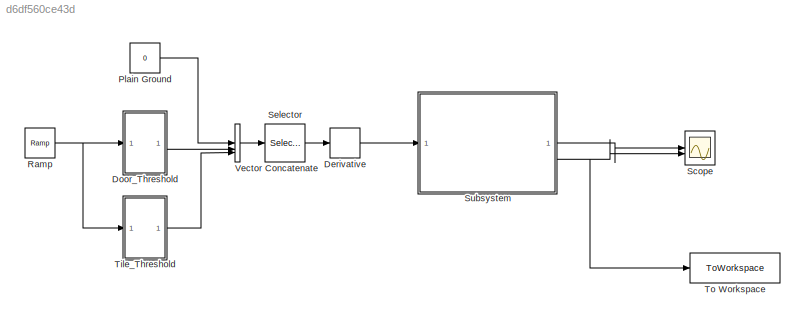
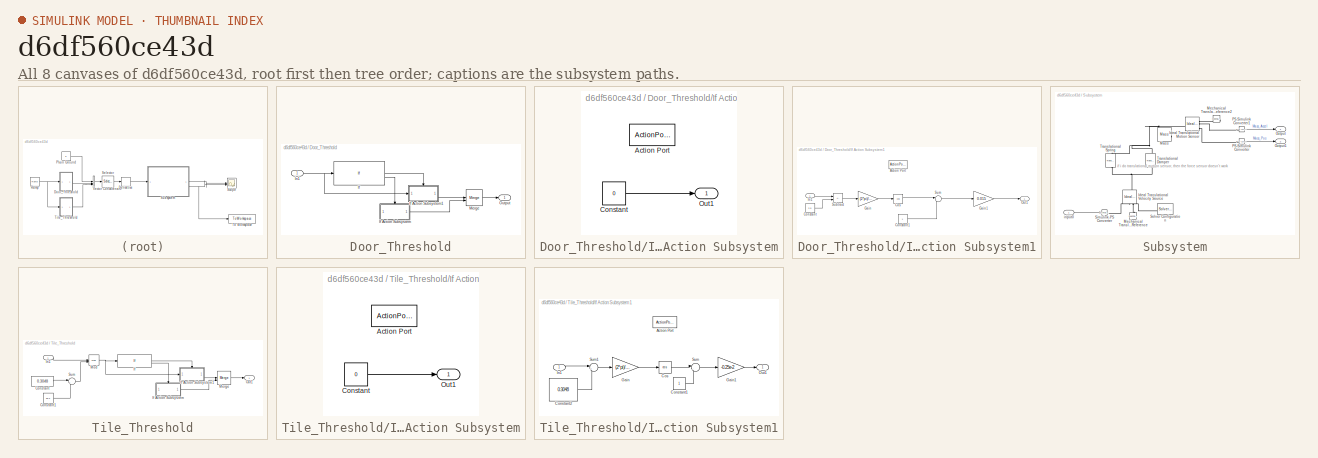
[diagram: thumbnail index - all 8 canvases of the model, root first then tree order]
MODEL slx_d6df560ce43d
KIND model
CONFIG AbsTol = 1e-3
CONFIG EnableMultiTasking = off
CONFIG FixedStep = auto
CONFIG MaxStep = auto
CONFIG MinStep = auto
CONFIG RelTol = 1e-3
CONFIG SampleTimeConstraint = Unconstrained
CONFIG SolverName = VariableStepAuto
CONFIG StartTime = 0.0
CONFIG StopTime = 15
BLOCK [Derivative] Derivative
BLOCK [SubSystem] Door_Threshold
BLOCK [If] Door_Threshold/If
  IfExpression = (u1 >= 2.5) & (u1 <= 2.55)
BLOCK [SubSystem] Door_Threshold/If Action Subsystem
  TreatAsAtomicUnit = on
BLOCK [ActionPort] Door_Threshold/If Action Subsystem/Action Port
  ActionPortLabel = else
BLOCK [Constant] Door_Threshold/If Action Subsystem/Constant
  Value = 0
BLOCK [Outport] Door_Threshold/If Action Subsystem/Out1
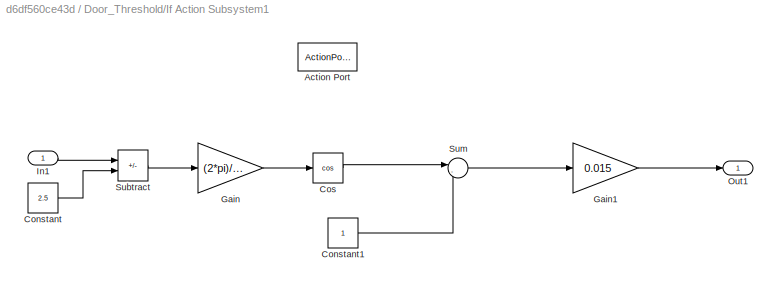
BLOCK [SubSystem] Door_Threshold/If Action Subsystem1
  TreatAsAtomicUnit = on
BLOCK [ActionPort] Door_Threshold/If Action Subsystem1/Action Port
  ActionPortLabel = if((u1 >= 2.5) & (u1 <= 2.55))
BLOCK [Constant] Door_Threshold/If Action Subsystem1/Constant
  Value = 2.5
BLOCK [Constant] Door_Threshold/If Action Subsystem1/Constant1
BLOCK [Trigonometry] Door_Threshold/If Action Subsystem1/Cos
  Operator = cos
BLOCK [Gain] Door_Threshold/If Action Subsystem1/Gain
  Gain = (2*pi)/0.05
BLOCK [Gain] Door_Threshold/If Action Subsystem1/Gain1
  Gain = 0.015
BLOCK [Inport] Door_Threshold/If Action Subsystem1/In1
BLOCK [Outport] Door_Threshold/If Action Subsystem1/Out1
BLOCK [Sum] Door_Threshold/If Action Subsystem1/Subtract
  IconShape = rectangular
  Inputs = +-
BLOCK [Sum] Door_Threshold/If Action Subsystem1/Sum
  Inputs = |-+
BLOCK [Inport] Door_Threshold/In1
BLOCK [Merge] Door_Threshold/Merge
BLOCK [Outport] Door_Threshold/Output
BLOCK [Constant] Plain Ground
  Value = 0
BLOCK [Reference] Ramp  REF=simulink/Sources/Ramp
  SourceBlock = simulink/Sources/Ramp
  SourceType = Ramp
BLOCK [Scope] Scope
  Floating = off
  NumInputPorts = 3
  ScopeSpecificationString = Simulink.scopes.TimeScopeBlockCfg('CurrentConfiguration', extmgr.ConfigurationSet(extmgr.Configuration('Core','General UI',true),extmgr.Configuration('Core','Source UI',true),extmgr.Configuration('Sources','WiredSimulink',true),extmgr.Configuration('Visuals','Time Domain',true,'SerializedDisplays',{struct('MinYLimReal','-0.02488','MaxYLimReal','0.04952','YLabelReal','','MinYLimMag','0.00000','MaxY...<+1457ch>
BLOCK [Selector] Selector
  IndexOptions = Index vector (dialog)
  Indices = [2]
  InputPortWidth = 3
  OutputSizes = 1
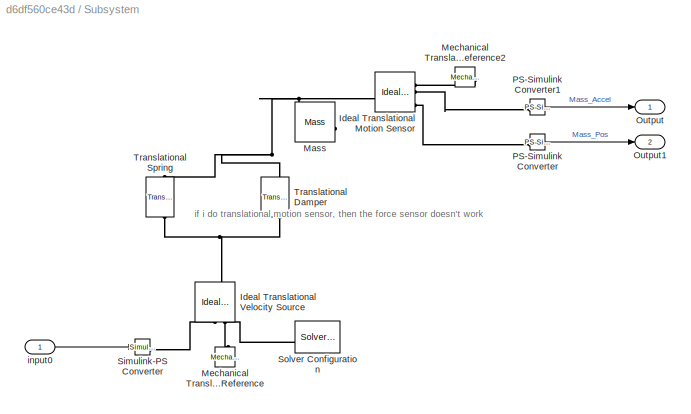
BLOCK [SubSystem] Subsystem
BLOCK [Reference] Subsystem/Ideal Translational Motion Sensor  REF=fl_lib/Mechanical/Mechanical Sensors/Ideal Translational
Motion Sensor
  SourceBlock = fl_lib/Mechanical/Mechanical Sensors/Ideal Translational\nMotion Sensor
  SourceType = Ideal Translational\nMotion Sensor
BLOCK [Reference] Subsystem/Ideal Translational Velocity Source  REF=fl_lib/Mechanical/Mechanical Sources/Ideal Translational
Velocity Source
  NameLocation = right
  SourceBlock = fl_lib/Mechanical/Mechanical Sources/Ideal Translational\nVelocity Source
  SourceType = Ideal Translational\nVelocity Source
BLOCK [Reference] Subsystem/Mass  REF=fl_lib/Mechanical/Translational
Elements/Mass
  NameLocation = top
  SourceBlock = fl_lib/Mechanical/Translational\nElements/Mass
  SourceType = Mass
BLOCK [Reference] Subsystem/Mechanical Translational Reference  REF=fl_lib/Mechanical/Translational
Elements/Mechanical
Translational
Reference
  SourceBlock = fl_lib/Mechanical/Translational\nElements/Mechanical\nTranslational\nReference
  SourceType = Mechanical\nTranslational\nReference
BLOCK [Reference] Subsystem/Mechanical Translational Reference2  REF=fl_lib/Mechanical/Translational
Elements/Mechanical
Translational
Reference
  NameLocation = top
  SourceBlock = fl_lib/Mechanical/Translational\nElements/Mechanical\nTranslational\nReference
  SourceType = Mechanical\nTranslational\nReference
BLOCK [Outport] Subsystem/Output
BLOCK [Outport] Subsystem/Output1
  Port = 2
BLOCK [Reference] Subsystem/PS-Simulink Converter  REF=nesl_utility/PS-Simulink
Converter
  SourceBlock = nesl_utility/PS-Simulink\nConverter
  SourceType = PS-Simulink\nConverter
BLOCK [Reference] Subsystem/PS-Simulink Converter1  REF=nesl_utility/PS-Simulink
Converter
  SourceBlock = nesl_utility/PS-Simulink\nConverter
  SourceType = PS-Simulink\nConverter
BLOCK [Reference] Subsystem/Simulink-PS Converter  REF=nesl_utility/Simulink-PS
Converter
  SourceBlock = nesl_utility/Simulink-PS\nConverter
  SourceType = Simulink-PS\nConverter
BLOCK [Reference] Subsystem/Solver Configuration  REF=nesl_utility/Solver
Configuration
  SourceBlock = nesl_utility/Solver\nConfiguration
  SourceType = Solver\nConfiguration
BLOCK [Reference] Subsystem/Translational Damper  REF=fl_lib/Mechanical/Translational
Elements/Translational Damper
  NameLocation = left
  SourceBlock = fl_lib/Mechanical/Translational\nElements/Translational Damper
  SourceType = Translational Damper
BLOCK [Reference] Subsystem/Translational Spring  REF=fl_lib/Mechanical/Translational
Elements/Translational Spring
  NameLocation = left
  SourceBlock = fl_lib/Mechanical/Translational\nElements/Translational Spring
  SourceType = Translational Spring
BLOCK [Inport] Subsystem/input0
BLOCK [SubSystem] Tile_Threshold
BLOCK [Constant] Tile_Threshold/Constant
  Value = 0.3048
BLOCK [Constant] Tile_Threshold/Constant1
  Value = 1e-2
BLOCK [If] Tile_Threshold/If
  IfExpression = u1 >= 0.3048
BLOCK [SubSystem] Tile_Threshold/If Action Subsystem
  TreatAsAtomicUnit = on
BLOCK [ActionPort] Tile_Threshold/If Action Subsystem/Action Port
  ActionPortLabel = else
BLOCK [Constant] Tile_Threshold/If Action Subsystem/Constant
  Value = 0
BLOCK [Outport] Tile_Threshold/If Action Subsystem/Out1
BLOCK [SubSystem] Tile_Threshold/If Action Subsystem1
  TreatAsAtomicUnit = on
BLOCK [ActionPort] Tile_Threshold/If Action Subsystem1/Action Port
  ActionPortLabel = if(u1 >= 0.3048)
BLOCK [Constant] Tile_Threshold/If Action Subsystem1/Constant1
BLOCK [Constant] Tile_Threshold/If Action Subsystem1/Constant2
  Value = 0.3048
BLOCK [Trigonometry] Tile_Threshold/If Action Subsystem1/Cos
  Operator = cos
BLOCK [Gain] Tile_Threshold/If Action Subsystem1/Gain
  Gain = (2*pi)/(1e-2)
BLOCK [Gain] Tile_Threshold/If Action Subsystem1/Gain1
  Gain = -0.25e-2
BLOCK [Inport] Tile_Threshold/If Action Subsystem1/In1
BLOCK [Outport] Tile_Threshold/If Action Subsystem1/Out1
BLOCK [Sum] Tile_Threshold/If Action Subsystem1/Sum
  Inputs = |-+
BLOCK [Sum] Tile_Threshold/If Action Subsystem1/Sum1
  Inputs = |+-
BLOCK [Inport] Tile_Threshold/In1
BLOCK [Merge] Tile_Threshold/Merge
BLOCK [Math] Tile_Threshold/Mod
  Operator = mod
BLOCK [Outport] Tile_Threshold/Out1
BLOCK [Sum] Tile_Threshold/Sum
  Inputs = |++
BLOCK [ToWorkspace] To Workspace
  FixptAsFi = on
  MaxDataPoints = inf
  SampleTime = -1
  SaveFormat = Timeseries
  VariableName = simout
BLOCK [Concatenate] Vector Concatenate
  NumInputs = 3
ANNOTATION Subsystem: if i do translational motion sensor, then the force sensor doesn't work
LINE Derivative:1 -> Subsystem:1
LINE Door_Threshold/If Action Subsystem/Constant:1 -> Door_Threshold/If Action Subsystem/Out1:1
LINE Door_Threshold/If Action Subsystem1/Constant1:1 -> Door_Threshold/If Action Subsystem1/Sum:2
LINE Door_Threshold/If Action Subsystem1/Constant:1 -> Door_Threshold/If Action Subsystem1/Subtract:2
LINE Door_Threshold/If Action Subsystem1/Cos:1 -> Door_Threshold/If Action Subsystem1/Sum:1
LINE Door_Threshold/If Action Subsystem1/Gain1:1 -> Door_Threshold/If Action Subsystem1/Out1:1
LINE Door_Threshold/If Action Subsystem1/Gain:1 -> Door_Threshold/If Action Subsystem1/Cos:1
LINE Door_Threshold/If Action Subsystem1/In1:1 -> Door_Threshold/If Action Subsystem1/Subtract:1
LINE Door_Threshold/If Action Subsystem1/Subtract:1 -> Door_Threshold/If Action Subsystem1/Gain:1
LINE Door_Threshold/If Action Subsystem1/Sum:1 -> Door_Threshold/If Action Subsystem1/Gain1:1
LINE Door_Threshold/If Action Subsystem1:1 -> Door_Threshold/Merge:1
LINE Door_Threshold/If Action Subsystem:1 -> Door_Threshold/Merge:2
LINE Door_Threshold/If:1 -> Door_Threshold/If Action Subsystem1:ifaction
LINE Door_Threshold/If:2 -> Door_Threshold/If Action Subsystem:ifaction
NET Door_Threshold/In1:1 -> Door_Threshold/If Action Subsystem1:1, Door_Threshold/If:1
LINE Door_Threshold/Merge:1 -> Door_Threshold/Output:1
LINE Door_Threshold:1 -> Vector Concatenate:2
LINE Plain Ground:1 -> Vector Concatenate:1
NET Ramp:1 -> Door_Threshold:1, Tile_Threshold:1
LINE Selector:1 -> Derivative:1
LINE Subsystem/PS-Simulink Converter1:1 -> Subsystem/Output:1
LINE Subsystem/PS-Simulink Converter:1 -> Subsystem/Output1:1
LINE Subsystem/input0:1 -> Subsystem/Simulink-PS Converter:1
LINE Subsystem:1 -> Scope:1
NET Subsystem:2 -> Scope:2, To Workspace:1
LINE Tile_Threshold/Constant1:1 -> Tile_Threshold/Sum:2
LINE Tile_Threshold/Constant:1 -> Tile_Threshold/Sum:1
LINE Tile_Threshold/If Action Subsystem/Constant:1 -> Tile_Threshold/If Action Subsystem/Out1:1
LINE Tile_Threshold/If Action Subsystem1/Constant1:1 -> Tile_Threshold/If Action Subsystem1/Sum:2
LINE Tile_Threshold/If Action Subsystem1/Constant2:1 -> Tile_Threshold/If Action Subsystem1/Sum1:2
LINE Tile_Threshold/If Action Subsystem1/Cos:1 -> Tile_Threshold/If Action Subsystem1/Sum:1
LINE Tile_Threshold/If Action Subsystem1/Gain1:1 -> Tile_Threshold/If Action Subsystem1/Out1:1
LINE Tile_Threshold/If Action Subsystem1/Gain:1 -> Tile_Threshold/If Action Subsystem1/Cos:1
LINE Tile_Threshold/If Action Subsystem1/In1:1 -> Tile_Threshold/If Action Subsystem1/Sum1:1
LINE Tile_Threshold/If Action Subsystem1/Sum1:1 -> Tile_Threshold/If Action Subsystem1/Gain:1
LINE Tile_Threshold/If Action Subsystem1/Sum:1 -> Tile_Threshold/If Action Subsystem1/Gain1:1
LINE Tile_Threshold/If Action Subsystem1:1 -> Tile_Threshold/Merge:1
LINE Tile_Threshold/If Action Subsystem:1 -> Tile_Threshold/Merge:2
LINE Tile_Threshold/If:1 -> Tile_Threshold/If Action Subsystem1:ifaction
LINE Tile_Threshold/If:2 -> Tile_Threshold/If Action Subsystem:ifaction
LINE Tile_Threshold/In1:1 -> Tile_Threshold/Mod:1
LINE Tile_Threshold/Merge:1 -> Tile_Threshold/Out1:1
NET Tile_Threshold/Mod:1 -> Tile_Threshold/If Action Subsystem1:1, Tile_Threshold/If:1
LINE Tile_Threshold/Sum:1 -> Tile_Threshold/Mod:2
LINE Tile_Threshold:1 -> Vector Concatenate:3
LINE Vector Concatenate:1 -> Selector:1
PNET net1: Subsystem/Ideal Translational Motion Sensor:LConn1 -- Subsystem/Mass:LConn1 -- Subsystem/Translational Damper:LConn1 -- Subsystem/Translational Spring:LConn1
PLINE Subsystem/Ideal Translational Motion Sensor:RConn1 -- Subsystem/Mechanical Translational Reference2:LConn1
PLINE Subsystem/Ideal Translational Motion Sensor:RConn2 -- Subsystem/PS-Simulink Converter1:LConn1
PLINE Subsystem/Ideal Translational Motion Sensor:RConn4 -- Subsystem/PS-Simulink Converter:LConn1
PNET net2: Subsystem/Ideal Translational Velocity Source:LConn1 -- Subsystem/Translational Damper:RConn1 -- Subsystem/Translational Spring:RConn1
PLINE Subsystem/Ideal Translational Velocity Source:RConn1 -- Subsystem/Simulink-PS Converter:RConn1
PNET net3: Subsystem/Ideal Translational Velocity Source:RConn2 -- Subsystem/Mechanical Translational Reference:LConn1 -- Subsystem/Solver Configuration:RConn1
note: NET lines group one-source signal fan-out (src -> all destinations, sorted); 1:1 wires keep LINE; PNET lines group multi-terminal physical nets as a canonical sorted terminal list (undirected conserving connections); 2-terminal nets keep the pairwise PLINE form
